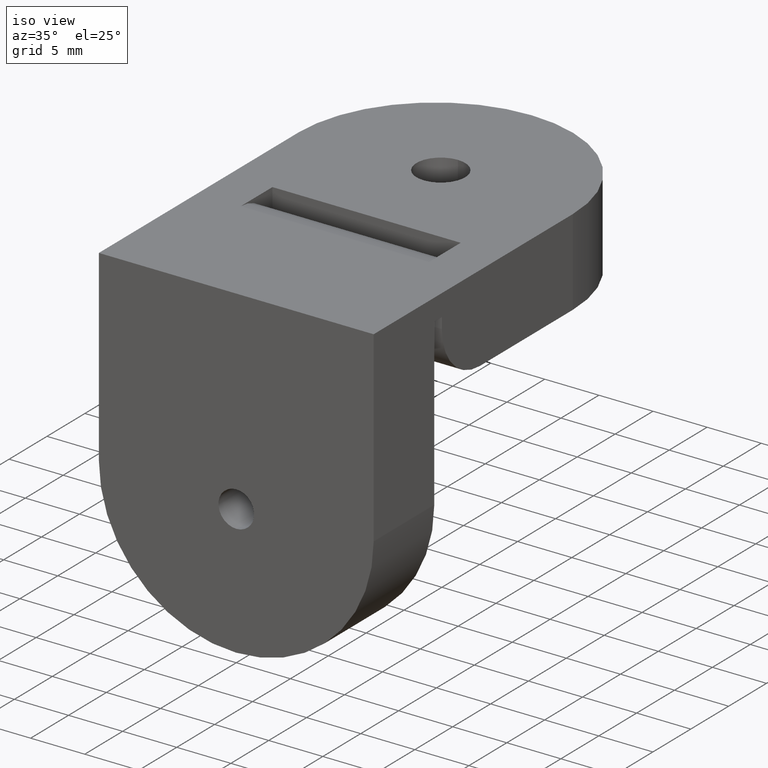
[diagram: clean part render]
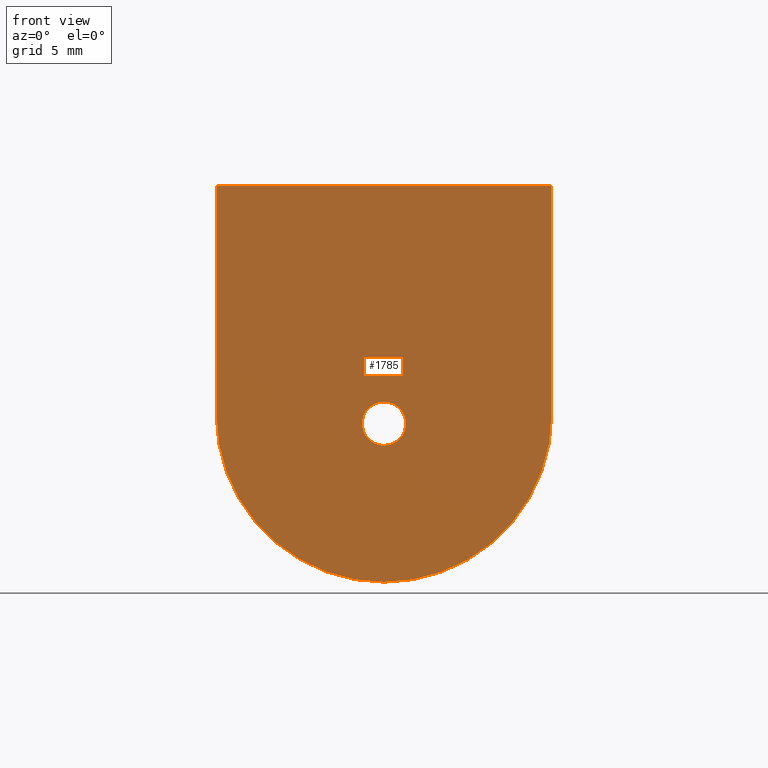
[diagram: tour spotlight — one face highlighted and labeled with its STEP entity id]
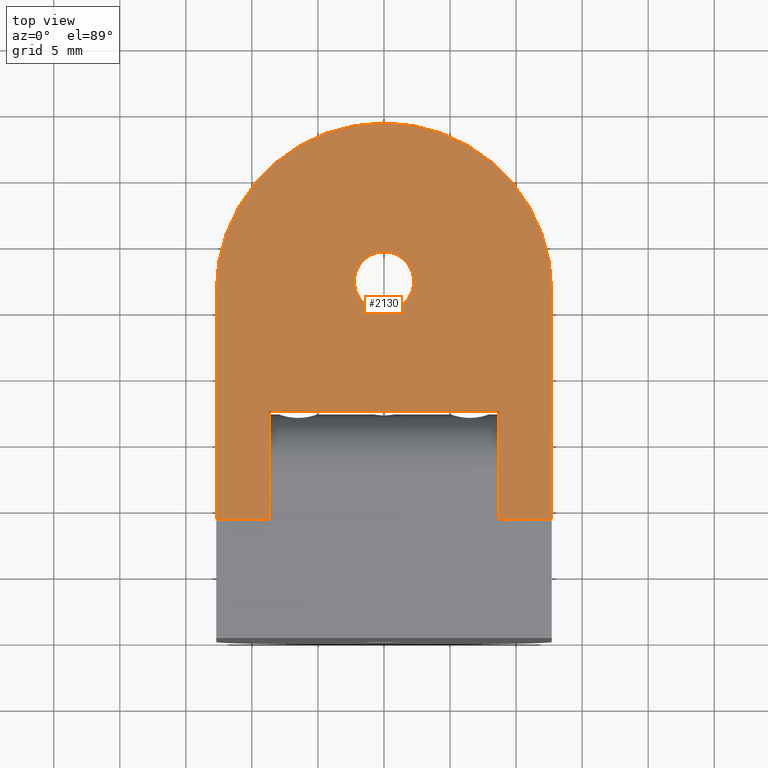
[diagram: tour spotlight — one face highlighted and labeled with its STEP entity id]
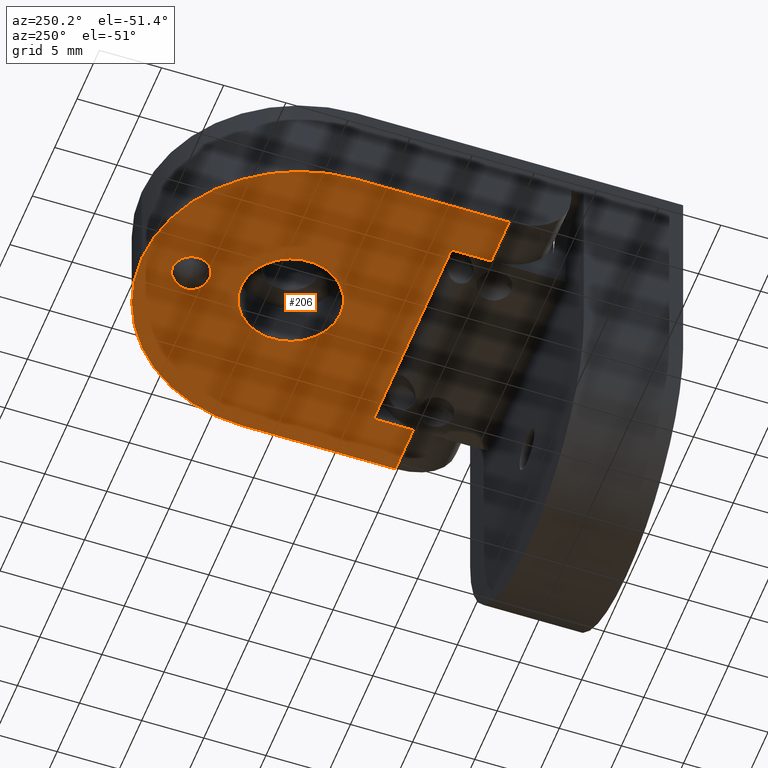
[diagram: tour spotlight — one face highlighted and labeled with its STEP entity id]
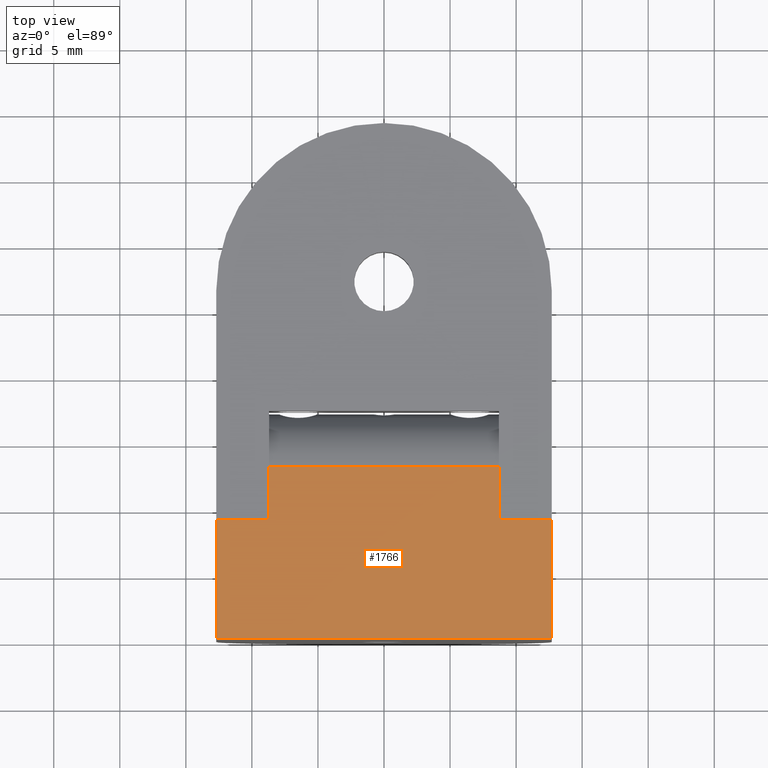
[diagram: tour spotlight — one face highlighted and labeled with its STEP entity id]
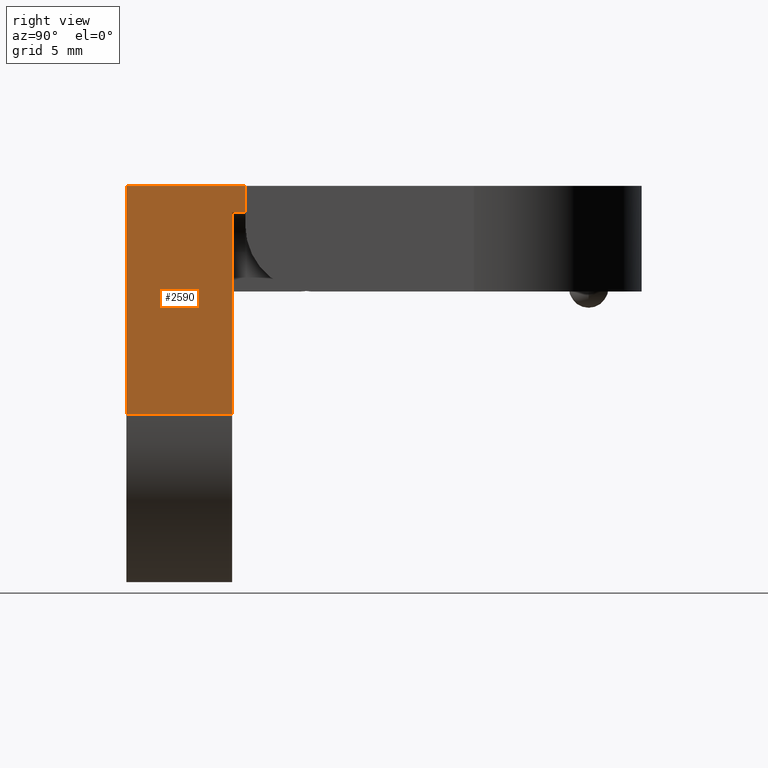
[diagram: tour spotlight — one face highlighted and labeled with its STEP entity id]
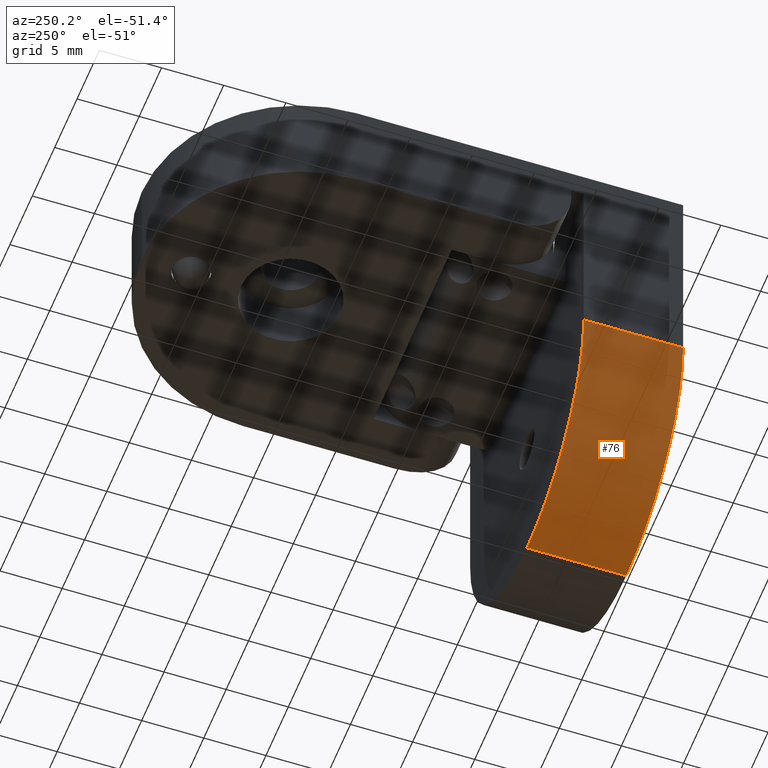
[diagram: tour spotlight — one face highlighted and labeled with its STEP entity id]
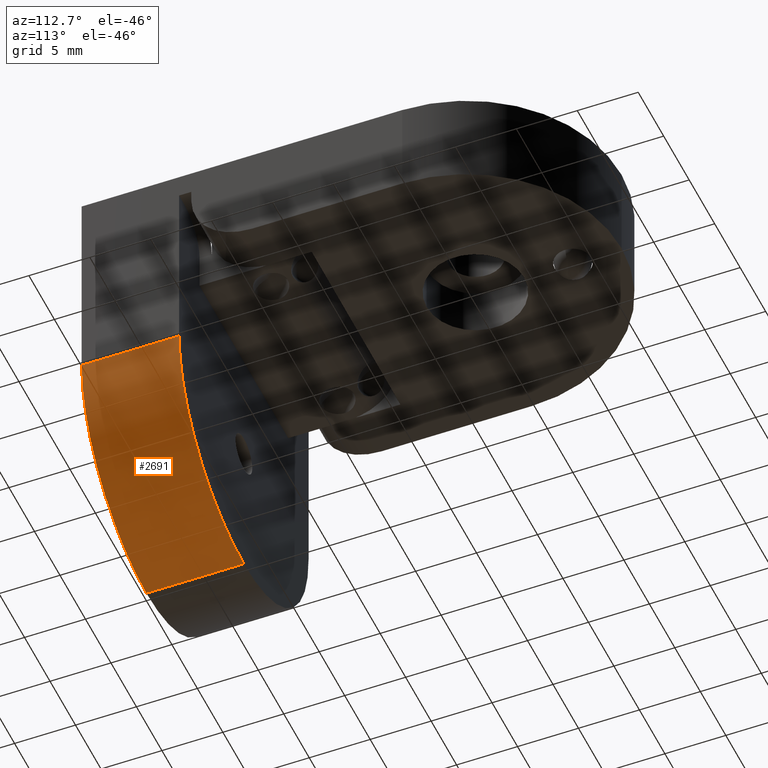
[diagram: tour spotlight — one face highlighted and labeled with its STEP entity id]
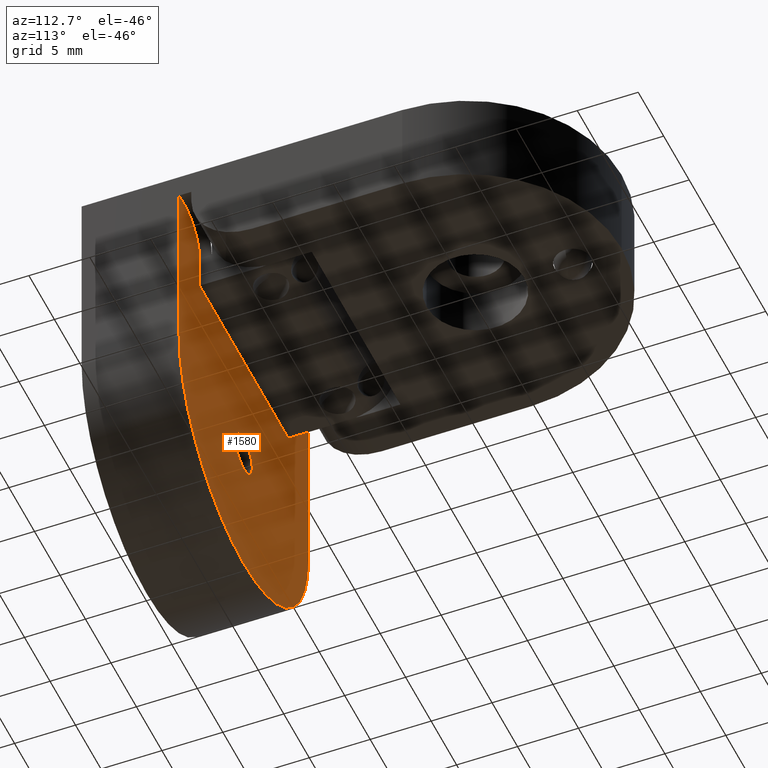
[diagram: tour spotlight — one face highlighted and labeled with its STEP entity id]
A machine part: a face-by-face anatomy tour. The part has 52 B-rep faces; the first image is the clean iso view, then the 8 largest visible faces are spotlighted one at a time (largest first), each with its STEP entity span.

Face 1 — front view, entity #1785. In plain terms, the highlighted planar face has unit normal (0, 1, -0).
Definition (entity closure, byte-faithful):
#17 = CARTESIAN_POINT ( 'NONE',  ( 2.020667218593131500E-016, 0.0000000000000000000, -19.65000000000000600 ) ) ;
#26 = CARTESIAN_POINT ( 'NONE',  ( -12.70000000000000500, 0.0000000000000000000, -1.340988245066351500E-015 ) ) ;
#235 = VERTEX_POINT ( 'NONE', #797 ) ;
#257 = DIRECTION ( 'NONE',  ( 0.0000000000000000000, 0.0000000000000000000, 1.000000000000000000 ) ) ;
#291 = FACE_BOUND ( 'NONE', #530, .T. ) ;
#305 = CIRCLE ( 'NONE', #1152, 12.69999999999999900 ) ;
#343 = VECTOR ( 'NONE', #1572, 1000.000000000000000 ) ;
#377 = CARTESIAN_POINT ( 'NONE',  ( 0.0000000000000000000, 0.0000000000000000000, -30.00000000000000400 ) ) ;
#392 = EDGE_CURVE ( 'NONE', #235, #1655, #305, .T. ) ;
#489 = CIRCLE ( 'NONE', #660, 1.649999999999998600 ) ;
#492 = EDGE_CURVE ( 'NONE', #1655, #976, #2020, .T. ) ;
#530 = EDGE_LOOP ( 'NONE', ( #2238, #2345 ) ) ;
#542 = EDGE_CURVE ( 'NONE', #2264, #1829, #2796, .T. ) ;
#590 = EDGE_LOOP ( 'NONE', ( #2422, #2455, #2482, #2712, #2745 ) ) ;
#660 = AXIS2_PLACEMENT_3D ( 'NONE', #2119, #2128, #2005 ) ;
#684 = VECTOR ( 'NONE', #691, 1000.000000000000000 ) ;
#691 = DIRECTION ( 'NONE',  ( -2.312964634635743000E-016, 0.0000000000000000000, 1.000000000000000000 ) ) ;
#743 = VERTEX_POINT ( 'NONE', #1146 ) ;
#797 = CARTESIAN_POINT ( 'NONE',  ( -12.70000000000000100, 0.0000000000000000000, -17.30000000000000800 ) ) ;
#959 = EDGE_CURVE ( 'NONE', #1829, #2264, #489, .T. ) ;
#976 = VERTEX_POINT ( 'NONE', #2139 ) ;
#981 = VERTEX_POINT ( 'NONE', #1955 ) ;
#988 = CARTESIAN_POINT ( 'NONE',  ( -12.70000000000000500, 0.0000000000000000000, -1.340988245066351500E-015 ) ) ;
#1030 = DIRECTION ( 'NONE',  ( -0.0000000000000000000, -1.000000000000000000, 0.0000000000000000000 ) ) ;
#1063 = EDGE_CURVE ( 'NONE', #743, #976, #1497, .T. ) ;
#1146 = CARTESIAN_POINT ( 'NONE',  ( 12.70000000000000500, 0.0000000000000000000, -1.340988245066351300E-015 ) ) ;
#1152 = AXIS2_PLACEMENT_3D ( 'NONE', #2289, #2510, #1674 ) ;
#1198 = DIRECTION ( 'NONE',  ( 1.000000000000000000, 0.0000000000000000000, 7.582401355855256700E-033 ) ) ;
#1207 = DIRECTION ( 'NONE',  ( 0.0000000000000000000, 0.0000000000000000000, 1.000000000000000000 ) ) ;
#1239 = CARTESIAN_POINT ( 'NONE',  ( 0.0000000000000000000, 0.0000000000000000000, -18.00000000000000700 ) ) ;
#1264 = LINE ( 'NONE', #1548, #684 ) ;
#1303 = VECTOR ( 'NONE', #1198, 1000.000000000000000 ) ;
#1323 = PLANE ( 'NONE',  #1612 ) ;
#1497 = LINE ( 'NONE', #1764, #343 ) ;
#1543 = DIRECTION ( 'NONE',  ( 0.0000000000000000000, 1.000000000000000000, -0.0000000000000000000 ) ) ;
#1548 = CARTESIAN_POINT ( 'NONE',  ( -12.69999999999999800, 0.0000000000000000000, -30.00000000000000000 ) ) ;
#1572 = DIRECTION ( 'NONE',  ( -1.156482317317871200E-016, -0.0000000000000000000, -1.000000000000000000 ) ) ;
#1612 = AXIS2_PLACEMENT_3D ( 'NONE', #26, #1543, #257 ) ;
#1655 = VERTEX_POINT ( 'NONE', #377 ) ;
#1674 = DIRECTION ( 'NONE',  ( 8.881784197001252300E-016, 0.0000000000000000000, 1.000000000000000000 ) ) ;
#1764 = CARTESIAN_POINT ( 'NONE',  ( 12.70000000000000100, 0.0000000000000000000, -30.00000000000000700 ) ) ;
#1785 = ADVANCED_FACE ( 'NONE', ( #291, #2524 ), #1323, .F. ) ;
#1829 = VERTEX_POINT ( 'NONE', #17 ) ;
#1869 = CARTESIAN_POINT ( 'NONE',  ( 3.469446951953614200E-015, 0.0000000000000000000, -17.30000000000000400 ) ) ;
#1878 = DIRECTION ( 'NONE',  ( -0.0000000000000000000, 1.000000000000000000, -0.0000000000000000000 ) ) ;
#1955 = CARTESIAN_POINT ( 'NONE',  ( -12.70000000000000500, 0.0000000000000000000, -1.340988245066351500E-015 ) ) ;
#2005 = DIRECTION ( 'NONE',  ( 0.0000000000000000000, 0.0000000000000000000, 1.000000000000000000 ) ) ;
#2020 = CIRCLE ( 'NONE', #2852, 12.69999999999999900 ) ;
#2083 = DIRECTION ( 'NONE',  ( 0.0000000000000000000, 0.0000000000000000000, 1.000000000000000000 ) ) ;
#2119 = CARTESIAN_POINT ( 'NONE',  ( 0.0000000000000000000, 0.0000000000000000000, -18.00000000000000700 ) ) ;
#2128 = DIRECTION ( 'NONE',  ( -0.0000000000000000000, 1.000000000000000000, -0.0000000000000000000 ) ) ;
#2139 = CARTESIAN_POINT ( 'NONE',  ( 12.70000000000000300, 0.0000000000000000000, -17.30000000000000400 ) ) ;
#2238 = ORIENTED_EDGE ( 'NONE', *, *, #542, .T. ) ;
#2263 = EDGE_CURVE ( 'NONE', #981, #743, #2462, .T. ) ;
#2264 = VERTEX_POINT ( 'NONE', #2755 ) ;
#2289 = CARTESIAN_POINT ( 'NONE',  ( -1.202741610010585500E-015, 0.0000000000000000000, -17.30000000000000400 ) ) ;
#2313 = AXIS2_PLACEMENT_3D ( 'NONE', #1239, #1878, #2083 ) ;
#2345 = ORIENTED_EDGE ( 'NONE', *, *, #959, .T. ) ;
#2422 = ORIENTED_EDGE ( 'NONE', *, *, #2473, .F. ) ;
#2455 = ORIENTED_EDGE ( 'NONE', *, *, #392, .T. ) ;
#2462 = LINE ( 'NONE', #988, #1303 ) ;
#2473 = EDGE_CURVE ( 'NONE', #235, #981, #1264, .T. ) ;
#2482 = ORIENTED_EDGE ( 'NONE', *, *, #492, .T. ) ;
#2510 = DIRECTION ( 'NONE',  ( -0.0000000000000000000, -1.000000000000000000, 0.0000000000000000000 ) ) ;
#2524 = FACE_OUTER_BOUND ( 'NONE', #590, .T. ) ;
#2712 = ORIENTED_EDGE ( 'NONE', *, *, #1063, .F. ) ;
#2745 = ORIENTED_EDGE ( 'NONE', *, *, #2263, .F. ) ;
#2755 = CARTESIAN_POINT ( 'NONE',  ( 0.0000000000000000000, 0.0000000000000000000, -16.35000000000000900 ) ) ;
#2796 = CIRCLE ( 'NONE', #2313, 1.649999999999998600 ) ;
#2852 = AXIS2_PLACEMENT_3D ( 'NONE', #1869, #1030, #1207 ) ;

Face 2 — top view, entity #2130. In plain terms, the highlighted planar face has unit normal (0, -0, 1).
Definition (entity closure, byte-faithful):
#1 = CARTESIAN_POINT ( 'NONE',  ( 1.426771256514218100E-014, 24.74999999999999600, 1.734723475976807100E-015 ) ) ;
#43 = CARTESIAN_POINT ( 'NONE',  ( 12.70000000000001900, 26.29999999999999000, 0.0000000000000000000 ) ) ;
#98 = DIRECTION ( 'NONE',  ( -4.051086181743855400E-016, -1.000000000000000000, 4.012346352874580400E-032 ) ) ;
#110 = AXIS2_PLACEMENT_3D ( 'NONE', #2067, #763, #2284 ) ;
#123 = ORIENTED_EDGE ( 'NONE', *, *, #2343, .T. ) ;
#156 = CARTESIAN_POINT ( 'NONE',  ( 1.473018841299535200E-014, 26.99999999999999600, 1.734723475976807100E-015 ) ) ;
#216 = CIRCLE ( 'NONE', #110, 2.249999999999998700 ) ;
#275 = CARTESIAN_POINT ( 'NONE',  ( -12.69999999999999200, 8.999999999999996400, 3.469446951953614200E-015 ) ) ;
#313 = CARTESIAN_POINT ( 'NONE',  ( 12.70000000000001900, 38.99999999999999300, 0.0000000000000000000 ) ) ;
#339 = EDGE_CURVE ( 'NONE', #2782, #1616, #1968, .T. ) ;
#349 = DIRECTION ( 'NONE',  ( -1.734720147809983000E-016, 0.0000000000000000000, -1.000000000000000000 ) ) ;
#351 = AXIS2_PLACEMENT_3D ( 'NONE', #729, #2252, #956 ) ;
#384 = LINE ( 'NONE', #2081, #1459 ) ;
#386 = AXIS2_PLACEMENT_3D ( 'NONE', #156, #349, #762 ) ;
#394 = CARTESIAN_POINT ( 'NONE',  ( -12.69999999999999200, 8.999999999999996400, 3.469446951953614200E-015 ) ) ;
#397 = EDGE_CURVE ( 'NONE', #2211, #2381, #1328, .T. ) ;
#440 = VERTEX_POINT ( 'NONE', #1850 ) ;
#513 = EDGE_CURVE ( 'NONE', #2072, #770, #1743, .T. ) ;
#524 = EDGE_CURVE ( 'NONE', #687, #2642, #1667, .T. ) ;
#531 = CARTESIAN_POINT ( 'NONE',  ( 8.700000000000015300, 17.19999999999999200, 0.0000000000000000000 ) ) ;
#558 = EDGE_LOOP ( 'NONE', ( #2641, #2710 ) ) ;
#617 = LINE ( 'NONE', #861, #1706 ) ;
#628 = EDGE_CURVE ( 'NONE', #1332, #440, #384, .T. ) ;
#687 = VERTEX_POINT ( 'NONE', #1936 ) ;
#690 = VECTOR ( 'NONE', #2341, 1000.000000000000000 ) ;
#729 = CARTESIAN_POINT ( 'NONE',  ( -12.69999999999999200, 8.999999999999996400, 3.469446951953614200E-015 ) ) ;
#734 = EDGE_CURVE ( 'NONE', #2381, #440, #1837, .T. ) ;
#762 = DIRECTION ( 'NONE',  ( 1.738121547108111700E-016, 1.000000000000000000, 0.0000000000000000000 ) ) ;
#763 = DIRECTION ( 'NONE',  ( -1.734720147809983000E-016, 0.0000000000000000000, -1.000000000000000000 ) ) ;
#770 = VERTEX_POINT ( 'NONE', #912 ) ;
#789 = EDGE_CURVE ( 'NONE', #2642, #1332, #617, .T. ) ;
#840 = DIRECTION ( 'NONE',  ( -1.000000000000000000, 7.411540321789126700E-017, 1.734720147809983500E-016 ) ) ;
#861 = CARTESIAN_POINT ( 'NONE',  ( -8.699999999999983300, 17.19999999999999200, 3.469446951953614200E-015 ) ) ;
#912 = CARTESIAN_POINT ( 'NONE',  ( 1.681593426952508600E-014, 38.99999999999999300, 1.734723475976807100E-015 ) ) ;
#946 = ORIENTED_EDGE ( 'NONE', *, *, #1897, .T. ) ;
#956 = DIRECTION ( 'NONE',  ( -1.738121547108112500E-016, -1.000000000000000000, 0.0000000000000000000 ) ) ;
#1089 = VECTOR ( 'NONE', #1854, 1000.000000000000000 ) ;
#1094 = CIRCLE ( 'NONE', #2786, 12.69999999999999900 ) ;
#1100 = VECTOR ( 'NONE', #1227, 1000.000000000000000 ) ;
#1103 = VECTOR ( 'NONE', #1360, 1000.000000000000000 ) ;
#1166 = LINE ( 'NONE', #275, #1103 ) ;
#1191 = FACE_OUTER_BOUND ( 'NONE', #2668, .T. ) ;
#1227 = DIRECTION ( 'NONE',  ( 1.738121547108112500E-016, 1.000000000000000000, 0.0000000000000000000 ) ) ;
#1246 = DIRECTION ( 'NONE',  ( 1.734720147809983000E-016, 0.0000000000000000000, 1.000000000000000000 ) ) ;
#1247 = DIRECTION ( 'NONE',  ( 1.734720147809983000E-016, 0.0000000000000000000, 1.000000000000000000 ) ) ;
#1262 = CARTESIAN_POINT ( 'NONE',  ( 1.512126576109467900E-014, 29.24999999999999600, 1.734723475976807100E-015 ) ) ;
#1328 = LINE ( 'NONE', #2281, #2419 ) ;
#1332 = VERTEX_POINT ( 'NONE', #1704 ) ;
#1360 = DIRECTION ( 'NONE',  ( 1.000000000000000000, -1.738121547108112200E-016, -1.734720147809983500E-016 ) ) ;
#1383 = CARTESIAN_POINT ( 'NONE',  ( -12.69999999999998500, 26.30000000000000400, 3.469446951953614200E-015 ) ) ;
#1438 = ORIENTED_EDGE ( 'NONE', *, *, #524, .F. ) ;
#1443 = CARTESIAN_POINT ( 'NONE',  ( 8.700000000000013500, 8.999999999999994700, 0.0000000000000000000 ) ) ;
#1459 = VECTOR ( 'NONE', #2850, 1000.000000000000000 ) ;
#1616 = VERTEX_POINT ( 'NONE', #1 ) ;
#1650 = ORIENTED_EDGE ( 'NONE', *, *, #789, .F. ) ;
#1667 = LINE ( 'NONE', #1443, #1100 ) ;
#1704 = CARTESIAN_POINT ( 'NONE',  ( -8.699999999999983300, 17.19999999999999200, 3.469446951953614200E-015 ) ) ;
#1706 = VECTOR ( 'NONE', #840, 1000.000000000000000 ) ;
#1729 = ORIENTED_EDGE ( 'NONE', *, *, #734, .T. ) ;
#1734 = VERTEX_POINT ( 'NONE', #2855 ) ;
#1743 = CIRCLE ( 'NONE', #2025, 12.69999999999999900 ) ;
#1828 = ORIENTED_EDGE ( 'NONE', *, *, #513, .T. ) ;
#1835 = FACE_BOUND ( 'NONE', #558, .T. ) ;
#1837 = LINE ( 'NONE', #2104, #690 ) ;
#1850 = CARTESIAN_POINT ( 'NONE',  ( -8.699999999999985100, 8.999999999999996400, 3.469446951953614200E-015 ) ) ;
#1854 = DIRECTION ( 'NONE',  ( 5.816392297902412600E-017, 1.000000000000000000, 2.006173176437289900E-032 ) ) ;
#1897 = EDGE_CURVE ( 'NONE', #687, #1734, #1166, .T. ) ;
#1936 = CARTESIAN_POINT ( 'NONE',  ( 8.700000000000013500, 8.999999999999994700, 0.0000000000000000000 ) ) ;
#1968 = CIRCLE ( 'NONE', #386, 2.249999999999998700 ) ;
#2025 = AXIS2_PLACEMENT_3D ( 'NONE', #2310, #1247, #2335 ) ;
#2067 = CARTESIAN_POINT ( 'NONE',  ( 1.473018841299535200E-014, 26.99999999999999600, 1.734723475976807100E-015 ) ) ;
#2072 = VERTEX_POINT ( 'NONE', #43 ) ;
#2081 = CARTESIAN_POINT ( 'NONE',  ( -8.699999999999985100, 8.999999999999996400, 3.469446951953614200E-015 ) ) ;
#2104 = CARTESIAN_POINT ( 'NONE',  ( -12.69999999999999200, 8.999999999999996400, 3.469446951953614200E-015 ) ) ;
#2130 = ADVANCED_FACE ( 'NONE', ( #1835, #1191 ), #2711, .T. ) ;
#2211 = VERTEX_POINT ( 'NONE', #1383 ) ;
#2220 = EDGE_CURVE ( 'NONE', #1616, #2782, #216, .T. ) ;
#2242 = LINE ( 'NONE', #313, #1089 ) ;
#2252 = DIRECTION ( 'NONE',  ( 1.734720147809983000E-016, -3.015154467111101400E-032, 1.000000000000000000 ) ) ;
#2281 = CARTESIAN_POINT ( 'NONE',  ( -12.69999999999998000, 38.99999999999999300, 3.469446951953614200E-015 ) ) ;
#2284 = DIRECTION ( 'NONE',  ( 1.738121547108111700E-016, 1.000000000000000000, 0.0000000000000000000 ) ) ;
#2310 = CARTESIAN_POINT ( 'NONE',  ( 1.807796685665139600E-014, 26.29999999999999700, 1.734723475976807100E-015 ) ) ;
#2335 = DIRECTION ( 'NONE',  ( -1.738121547108112500E-016, -1.000000000000000000, 0.0000000000000000000 ) ) ;
#2341 = DIRECTION ( 'NONE',  ( 1.000000000000000000, -1.738121547108112200E-016, -1.734720147809983500E-016 ) ) ;
#2343 = EDGE_CURVE ( 'NONE', #770, #2211, #1094, .T. ) ;
#2381 = VERTEX_POINT ( 'NONE', #394 ) ;
#2391 = ORIENTED_EDGE ( 'NONE', *, *, #2679, .T. ) ;
#2419 = VECTOR ( 'NONE', #98, 1000.000000000000000 ) ;
#2514 = ORIENTED_EDGE ( 'NONE', *, *, #397, .T. ) ;
#2556 = CARTESIAN_POINT ( 'NONE',  ( 1.340577829468719800E-014, 26.29999999999999700, 1.734723475976807100E-015 ) ) ;
#2641 = ORIENTED_EDGE ( 'NONE', *, *, #339, .T. ) ;
#2642 = VERTEX_POINT ( 'NONE', #531 ) ;
#2644 = ORIENTED_EDGE ( 'NONE', *, *, #628, .F. ) ;
#2668 = EDGE_LOOP ( 'NONE', ( #1828, #123, #2514, #1729, #2644, #1650, #1438, #946, #2391 ) ) ;
#2679 = EDGE_CURVE ( 'NONE', #1734, #2072, #2242, .T. ) ;
#2710 = ORIENTED_EDGE ( 'NONE', *, *, #2220, .T. ) ;
#2711 = PLANE ( 'NONE',  #351 ) ;
#2782 = VERTEX_POINT ( 'NONE', #1262 ) ;
#2786 = AXIS2_PLACEMENT_3D ( 'NONE', #2556, #1246, #2804 ) ;
#2804 = DIRECTION ( 'NONE',  ( -1.738121547108112500E-016, -1.000000000000000000, 0.0000000000000000000 ) ) ;
#2850 = DIRECTION ( 'NONE',  ( -1.738121547108112500E-016, -1.000000000000000000, 0.0000000000000000000 ) ) ;
#2855 = CARTESIAN_POINT ( 'NONE',  ( 12.70000000000001700, 8.999999999999992900, 0.0000000000000000000 ) ) ;

Face 3 — auxiliary view, entity #206. In plain terms, the highlighted planar face has unit normal (0, -0, 1).
Definition (entity closure, byte-faithful):
#63 = EDGE_LOOP ( 'NONE', ( #1521, #1800, #2144, #1559, #1584, #1697, #1767, #2746, #1862 ) ) ;
#126 = FACE_OUTER_BOUND ( 'NONE', #63, .T. ) ;
#142 = DIRECTION ( 'NONE',  ( -1.734720147809983000E-016, 0.0000000000000000000, -1.000000000000000000 ) ) ;
#152 = CARTESIAN_POINT ( 'NONE',  ( -8.699999999999985100, 13.99999999999999500, -7.999999999999996400 ) ) ;
#162 = DIRECTION ( 'NONE',  ( 5.816392297902412600E-017, 1.000000000000000000, 2.006173176437289900E-032 ) ) ;
#167 = AXIS2_PLACEMENT_3D ( 'NONE', #1984, #142, #1959 ) ;
#195 = DIRECTION ( 'NONE',  ( -4.051086181743855400E-016, -1.000000000000000000, 4.012346352874580400E-032 ) ) ;
#206 = ADVANCED_FACE ( 'NONE', ( #718, #1214, #126 ), #518, .F. ) ;
#219 = EDGE_CURVE ( 'NONE', #2545, #977, #247, .T. ) ;
#247 = CIRCLE ( 'NONE', #2705, 12.69999999999999900 ) ;
#260 = VECTOR ( 'NONE', #195, 1000.000000000000000 ) ;
#412 = CIRCLE ( 'NONE', #2603, 12.69999999999999900 ) ;
#456 = EDGE_CURVE ( 'NONE', #2784, #1560, #1501, .T. ) ;
#518 = PLANE ( 'NONE',  #1039 ) ;
#545 = CARTESIAN_POINT ( 'NONE',  ( 1.473290953243385300E-014, 34.99999999999999300, -7.999999999999998200 ) ) ;
#557 = VERTEX_POINT ( 'NONE', #2450 ) ;
#585 = EDGE_CURVE ( 'NONE', #2129, #2249, #1596, .T. ) ;
#588 = CARTESIAN_POINT ( 'NONE',  ( -12.69999999999999200, 13.99999999999999600, -7.999999999999996400 ) ) ;
#635 = DIRECTION ( 'NONE',  ( -1.734720147809983000E-016, -0.0000000000000000000, -1.000000000000000000 ) ) ;
#656 = DIRECTION ( 'NONE',  ( -1.000000000000000000, 1.738121547108112200E-016, 1.734720147809983500E-016 ) ) ;
#669 = EDGE_CURVE ( 'NONE', #1156, #2716, #2045, .T. ) ;
#692 = EDGE_CURVE ( 'NONE', #2716, #1014, #1910, .T. ) ;
#693 = CARTESIAN_POINT ( 'NONE',  ( 1.201800217643921200E-014, 26.29999999999999700, -7.999999999999998200 ) ) ;
#708 = EDGE_CURVE ( 'NONE', #2545, #1014, #1393, .T. ) ;
#709 = CARTESIAN_POINT ( 'NONE',  ( 1.334241229474736400E-014, 26.99999999999999600, -7.999999999999998200 ) ) ;
#718 = FACE_BOUND ( 'NONE', #2589, .T. ) ;
#826 = VECTOR ( 'NONE', #1755, 1000.000000000000000 ) ;
#849 = AXIS2_PLACEMENT_3D ( 'NONE', #709, #2228, #936 ) ;
#875 = EDGE_CURVE ( 'NONE', #2336, #2129, #2221, .T. ) ;
#930 = CARTESIAN_POINT ( 'NONE',  ( -12.69999999999999200, 13.99999999999999600, -7.999999999999996400 ) ) ;
#936 = DIRECTION ( 'NONE',  ( 1.738121547108115000E-016, 1.000000000000000000, 0.0000000000000000000 ) ) ;
#966 = AXIS2_PLACEMENT_3D ( 'NONE', #545, #2777, #1425 ) ;
#969 = DIRECTION ( 'NONE',  ( 1.734720147809983000E-016, -3.015154467111101400E-032, 1.000000000000000000 ) ) ;
#977 = VERTEX_POINT ( 'NONE', #1997 ) ;
#997 = CARTESIAN_POINT ( 'NONE',  ( 1.465588832023973700E-014, 33.49999999999998600, -7.999999999999998200 ) ) ;
#1014 = VERTEX_POINT ( 'NONE', #1780 ) ;
#1039 = AXIS2_PLACEMENT_3D ( 'NONE', #1174, #969, #1119 ) ;
#1119 = DIRECTION ( 'NONE',  ( -1.738121547108112500E-016, -1.000000000000000000, 0.0000000000000000000 ) ) ;
#1148 = EDGE_CURVE ( 'NONE', #1253, #2042, #1226, .T. ) ;
#1156 = VERTEX_POINT ( 'NONE', #2111 ) ;
#1157 = CARTESIAN_POINT ( 'NONE',  ( 1.669019073840341200E-014, 26.29999999999999700, -7.999999999999998200 ) ) ;
#1174 = CARTESIAN_POINT ( 'NONE',  ( -12.69999999999999400, 8.999999999999996400, -7.999999999999996400 ) ) ;
#1199 = EDGE_CURVE ( 'NONE', #2249, #1156, #1567, .T. ) ;
#1214 = FACE_BOUND ( 'NONE', #2063, .T. ) ;
#1226 = CIRCLE ( 'NONE', #167, 4.000000000000000000 ) ;
#1253 = VERTEX_POINT ( 'NONE', #1915 ) ;
#1256 = DIRECTION ( 'NONE',  ( -1.738121547108112500E-016, -1.000000000000000000, 0.0000000000000000000 ) ) ;
#1282 = CARTESIAN_POINT ( 'NONE',  ( -12.69999999999998200, 38.99999999999999300, -7.999999999999996400 ) ) ;
#1310 = CARTESIAN_POINT ( 'NONE',  ( -8.699999999999986900, 8.999999999999996400, -7.999999999999996400 ) ) ;
#1335 = VECTOR ( 'NONE', #162, 1000.000000000000000 ) ;
#1338 = VECTOR ( 'NONE', #2206, 1000.000000000000000 ) ;
#1362 = ORIENTED_EDGE ( 'NONE', *, *, #1925, .F. ) ;
#1375 = DIRECTION ( 'NONE',  ( -1.738121547108112500E-016, -1.000000000000000000, 0.0000000000000000000 ) ) ;
#1393 = LINE ( 'NONE', #1282, #260 ) ;
#1405 = CARTESIAN_POINT ( 'NONE',  ( 8.700000000000013500, 17.19999999999999200, -8.000000000000000000 ) ) ;
#1411 = AXIS2_PLACEMENT_3D ( 'NONE', #1943, #635, #2162 ) ;
#1414 = ORIENTED_EDGE ( 'NONE', *, *, #1148, .F. ) ;
#1425 = DIRECTION ( 'NONE',  ( 1.738121547108116200E-016, 1.000000000000000000, 0.0000000000000000000 ) ) ;
#1473 = DIRECTION ( 'NONE',  ( -1.734720147809983000E-016, -0.0000000000000000000, -1.000000000000000000 ) ) ;
#1501 = CIRCLE ( 'NONE', #966, 1.500000000000001300 ) ;
#1521 = ORIENTED_EDGE ( 'NONE', *, *, #708, .F. ) ;
#1556 = CARTESIAN_POINT ( 'NONE',  ( -12.69999999999998700, 26.30000000000000400, -7.999999999999996400 ) ) ;
#1559 = ORIENTED_EDGE ( 'NONE', *, *, #2366, .F. ) ;
#1560 = VERTEX_POINT ( 'NONE', #997 ) ;
#1561 = CARTESIAN_POINT ( 'NONE',  ( 1.348396642512505600E-014, 22.99999999999999600, -7.999999999999998200 ) ) ;
#1567 = LINE ( 'NONE', #2546, #1739 ) ;
#1584 = ORIENTED_EDGE ( 'NONE', *, *, #875, .T. ) ;
#1596 = LINE ( 'NONE', #2328, #2722 ) ;
#1625 = VECTOR ( 'NONE', #656, 1000.000000000000000 ) ;
#1670 = CIRCLE ( 'NONE', #1411, 1.500000000000001300 ) ;
#1697 = ORIENTED_EDGE ( 'NONE', *, *, #585, .T. ) ;
#1739 = VECTOR ( 'NONE', #2193, 1000.000000000000000 ) ;
#1755 = DIRECTION ( 'NONE',  ( -1.738121547108112500E-016, -1.000000000000000000, 0.0000000000000000000 ) ) ;
#1767 = ORIENTED_EDGE ( 'NONE', *, *, #1199, .T. ) ;
#1780 = CARTESIAN_POINT ( 'NONE',  ( -12.69999999999999000, 13.99999999999999500, -7.999999999999996400 ) ) ;
#1800 = ORIENTED_EDGE ( 'NONE', *, *, #219, .T. ) ;
#1862 = ORIENTED_EDGE ( 'NONE', *, *, #692, .T. ) ;
#1908 = LINE ( 'NONE', #2333, #1335 ) ;
#1910 = LINE ( 'NONE', #930, #1338 ) ;
#1915 = CARTESIAN_POINT ( 'NONE',  ( 1.403766091359061000E-014, 30.99999999999999600, -7.999999999999998200 ) ) ;
#1925 = EDGE_CURVE ( 'NONE', #1560, #2784, #1670, .T. ) ;
#1943 = CARTESIAN_POINT ( 'NONE',  ( 1.473290953243385300E-014, 34.99999999999999300, -7.999999999999998200 ) ) ;
#1959 = DIRECTION ( 'NONE',  ( 1.738121547108115000E-016, 1.000000000000000000, 0.0000000000000000000 ) ) ;
#1984 = CARTESIAN_POINT ( 'NONE',  ( 1.334241229474736400E-014, 26.99999999999999600, -7.999999999999998200 ) ) ;
#1997 = CARTESIAN_POINT ( 'NONE',  ( 1.542815815127709900E-014, 38.99999999999999300, -7.999999999999998200 ) ) ;
#2027 = CARTESIAN_POINT ( 'NONE',  ( 8.700000000000013500, 13.99999999999999100, -8.000000000000000000 ) ) ;
#2042 = VERTEX_POINT ( 'NONE', #1561 ) ;
#2045 = LINE ( 'NONE', #1310, #826 ) ;
#2063 = EDGE_LOOP ( 'NONE', ( #1414, #2308 ) ) ;
#2077 = EDGE_CURVE ( 'NONE', #2042, #1253, #2321, .T. ) ;
#2111 = CARTESIAN_POINT ( 'NONE',  ( -8.699999999999985100, 17.19999999999999200, -7.999999999999996400 ) ) ;
#2129 = VERTEX_POINT ( 'NONE', #2027 ) ;
#2144 = ORIENTED_EDGE ( 'NONE', *, *, #2509, .T. ) ;
#2148 = ORIENTED_EDGE ( 'NONE', *, *, #456, .F. ) ;
#2162 = DIRECTION ( 'NONE',  ( 1.738121547108116200E-016, 1.000000000000000000, 0.0000000000000000000 ) ) ;
#2193 = DIRECTION ( 'NONE',  ( -1.000000000000000000, 7.411540321789126700E-017, 1.734720147809983500E-016 ) ) ;
#2206 = DIRECTION ( 'NONE',  ( -1.000000000000000000, 1.738121547108112200E-016, 1.734720147809983500E-016 ) ) ;
#2221 = LINE ( 'NONE', #588, #1625 ) ;
#2228 = DIRECTION ( 'NONE',  ( -1.734720147809983000E-016, 0.0000000000000000000, -1.000000000000000000 ) ) ;
#2249 = VERTEX_POINT ( 'NONE', #1405 ) ;
#2308 = ORIENTED_EDGE ( 'NONE', *, *, #2077, .F. ) ;
#2321 = CIRCLE ( 'NONE', #849, 4.000000000000000000 ) ;
#2324 = CARTESIAN_POINT ( 'NONE',  ( 12.70000000000001700, 13.99999999999999100, -8.000000000000000000 ) ) ;
#2328 = CARTESIAN_POINT ( 'NONE',  ( 8.700000000000011700, 8.999999999999994700, -8.000000000000000000 ) ) ;
#2333 = CARTESIAN_POINT ( 'NONE',  ( 12.70000000000001700, 38.99999999999999300, -8.000000000000000000 ) ) ;
#2336 = VERTEX_POINT ( 'NONE', #2324 ) ;
#2366 = EDGE_CURVE ( 'NONE', #2336, #557, #1908, .T. ) ;
#2450 = CARTESIAN_POINT ( 'NONE',  ( 12.70000000000001700, 26.29999999999999000, -8.000000000000000000 ) ) ;
#2494 = DIRECTION ( 'NONE',  ( 1.738121547108112500E-016, 1.000000000000000000, 0.0000000000000000000 ) ) ;
#2509 = EDGE_CURVE ( 'NONE', #977, #557, #412, .T. ) ;
#2545 = VERTEX_POINT ( 'NONE', #1556 ) ;
#2546 = CARTESIAN_POINT ( 'NONE',  ( -8.699999999999985100, 17.19999999999999200, -7.999999999999996400 ) ) ;
#2574 = CARTESIAN_POINT ( 'NONE',  ( 1.499362776450007100E-014, 36.49999999999999300, -7.999999999999998200 ) ) ;
#2589 = EDGE_LOOP ( 'NONE', ( #2148, #1362 ) ) ;
#2603 = AXIS2_PLACEMENT_3D ( 'NONE', #1157, #2704, #1375 ) ;
#2704 = DIRECTION ( 'NONE',  ( -1.734720147809983000E-016, -0.0000000000000000000, -1.000000000000000000 ) ) ;
#2705 = AXIS2_PLACEMENT_3D ( 'NONE', #693, #1473, #1256 ) ;
#2716 = VERTEX_POINT ( 'NONE', #152 ) ;
#2722 = VECTOR ( 'NONE', #2494, 1000.000000000000000 ) ;
#2746 = ORIENTED_EDGE ( 'NONE', *, *, #669, .T. ) ;
#2777 = DIRECTION ( 'NONE',  ( -1.734720147809983000E-016, -0.0000000000000000000, -1.000000000000000000 ) ) ;
#2784 = VERTEX_POINT ( 'NONE', #2574 ) ;

Face 4 — top view, entity #1766. In plain terms, the highlighted planar face has unit normal (0, 0, -1).
Definition (entity closure, byte-faithful):
#46 = EDGE_CURVE ( 'NONE', #1211, #2857, #158, .T. ) ;
#52 = VECTOR ( 'NONE', #1652, 1000.000000000000000 ) ;
#158 = LINE ( 'NONE', #362, #52 ) ;
#261 = EDGE_CURVE ( 'NONE', #1084, #1487, #1583, .T. ) ;
#297 = DIRECTION ( 'NONE',  ( 1.000000000000000000, 0.0000000000000000000, 8.113285044351170500E-017 ) ) ;
#338 = EDGE_LOOP ( 'NONE', ( #716, #2869, #2486, #2309, #2515, #2349, #482, #1617 ) ) ;
#357 = DIRECTION ( 'NONE',  ( -0.0000000000000000000, -1.000000000000000000, -0.0000000000000000000 ) ) ;
#362 = CARTESIAN_POINT ( 'NONE',  ( 8.699999999999997500, 17.00000000000000000, -1.340988245066351500E-015 ) ) ;
#389 = CARTESIAN_POINT ( 'NONE',  ( -12.70000000000000500, 13.00000000000000200, -1.340988245066351500E-015 ) ) ;
#463 = DIRECTION ( 'NONE',  ( 1.000000000000000000, -0.0000000000000000000, -3.260622102729823700E-016 ) ) ;
#482 = ORIENTED_EDGE ( 'NONE', *, *, #554, .F. ) ;
#554 = EDGE_CURVE ( 'NONE', #1356, #743, #574, .T. ) ;
#574 = LINE ( 'NONE', #1230, #2189 ) ;
#606 = DIRECTION ( 'NONE',  ( -0.0000000000000000000, -1.000000000000000000, -0.0000000000000000000 ) ) ;
#665 = CARTESIAN_POINT ( 'NONE',  ( 8.699999999999997500, 13.00000000000000200, -1.340988245066351500E-015 ) ) ;
#716 = ORIENTED_EDGE ( 'NONE', *, *, #46, .F. ) ;
#743 = VERTEX_POINT ( 'NONE', #1146 ) ;
#885 = DIRECTION ( 'NONE',  ( 7.582401355855256700E-033, 0.0000000000000000000, -1.000000000000000000 ) ) ;
#895 = CARTESIAN_POINT ( 'NONE',  ( -8.699999999999997500, 9.000000000000001800, -1.340988245066351500E-015 ) ) ;
#908 = CARTESIAN_POINT ( 'NONE',  ( -8.699999999999997500, 9.000000000000001800, -1.340988245066351500E-015 ) ) ;
#981 = VERTEX_POINT ( 'NONE', #1955 ) ;
#983 = LINE ( 'NONE', #1581, #2069 ) ;
#988 = CARTESIAN_POINT ( 'NONE',  ( -12.70000000000000500, 0.0000000000000000000, -1.340988245066351500E-015 ) ) ;
#1084 = VERTEX_POINT ( 'NONE', #1346 ) ;
#1130 = VECTOR ( 'NONE', #606, 1000.000000000000000 ) ;
#1146 = CARTESIAN_POINT ( 'NONE',  ( 12.70000000000000500, 0.0000000000000000000, -1.340988245066351300E-015 ) ) ;
#1198 = DIRECTION ( 'NONE',  ( 1.000000000000000000, 0.0000000000000000000, 7.582401355855256700E-033 ) ) ;
#1211 = VERTEX_POINT ( 'NONE', #665 ) ;
#1230 = CARTESIAN_POINT ( 'NONE',  ( 12.70000000000000500, 8.000000000000000000, -1.340988245066351300E-015 ) ) ;
#1303 = VECTOR ( 'NONE', #1198, 1000.000000000000000 ) ;
#1314 = PLANE ( 'NONE',  #1811 ) ;
#1346 = CARTESIAN_POINT ( 'NONE',  ( -8.699999999999997500, 13.00000000000000200, -1.340988245066351500E-015 ) ) ;
#1356 = VERTEX_POINT ( 'NONE', #1751 ) ;
#1487 = VERTEX_POINT ( 'NONE', #895 ) ;
#1563 = CARTESIAN_POINT ( 'NONE',  ( -12.69999999999999900, 9.000000000000001800, -3.673940397442155600E-017 ) ) ;
#1581 = CARTESIAN_POINT ( 'NONE',  ( 8.700000000000001100, 9.000000000000001800, -3.471873675582745600E-015 ) ) ;
#1583 = LINE ( 'NONE', #2831, #2095 ) ;
#1617 = ORIENTED_EDGE ( 'NONE', *, *, #2573, .F. ) ;
#1634 = EDGE_CURVE ( 'NONE', #1211, #1084, #2615, .T. ) ;
#1652 = DIRECTION ( 'NONE',  ( -0.0000000000000000000, -1.000000000000000000, -0.0000000000000000000 ) ) ;
#1703 = LINE ( 'NONE', #1914, #1130 ) ;
#1751 = CARTESIAN_POINT ( 'NONE',  ( 12.70000000000000300, 9.000000000000001800, -3.147342273808698900E-015 ) ) ;
#1766 = ADVANCED_FACE ( 'NONE', ( #2842 ), #1314, .F. ) ;
#1806 = LINE ( 'NONE', #908, #2717 ) ;
#1811 = AXIS2_PLACEMENT_3D ( 'NONE', #2188, #885, #2407 ) ;
#1864 = VERTEX_POINT ( 'NONE', #1563 ) ;
#1906 = DIRECTION ( 'NONE',  ( -1.000000000000000000, -0.0000000000000000000, -7.582401355855256700E-033 ) ) ;
#1914 = CARTESIAN_POINT ( 'NONE',  ( -12.70000000000000500, 8.000000000000000000, -1.340988245066351500E-015 ) ) ;
#1955 = CARTESIAN_POINT ( 'NONE',  ( -12.70000000000000500, 0.0000000000000000000, -1.340988245066351500E-015 ) ) ;
#2021 = VECTOR ( 'NONE', #1906, 1000.000000000000000 ) ;
#2069 = VECTOR ( 'NONE', #297, 1000.000000000000000 ) ;
#2095 = VECTOR ( 'NONE', #2355, 1000.000000000000000 ) ;
#2188 = CARTESIAN_POINT ( 'NONE',  ( -12.70000000000000500, 8.000000000000000000, -1.340988245066351500E-015 ) ) ;
#2189 = VECTOR ( 'NONE', #357, 1000.000000000000000 ) ;
#2263 = EDGE_CURVE ( 'NONE', #981, #743, #2462, .T. ) ;
#2309 = ORIENTED_EDGE ( 'NONE', *, *, #2428, .F. ) ;
#2349 = ORIENTED_EDGE ( 'NONE', *, *, #2263, .T. ) ;
#2355 = DIRECTION ( 'NONE',  ( -0.0000000000000000000, -1.000000000000000000, -0.0000000000000000000 ) ) ;
#2378 = EDGE_CURVE ( 'NONE', #1864, #981, #1703, .T. ) ;
#2407 = DIRECTION ( 'NONE',  ( -1.000000000000000000, 0.0000000000000000000, -7.582401355855256700E-033 ) ) ;
#2428 = EDGE_CURVE ( 'NONE', #1864, #1487, #1806, .T. ) ;
#2462 = LINE ( 'NONE', #988, #1303 ) ;
#2486 = ORIENTED_EDGE ( 'NONE', *, *, #261, .T. ) ;
#2515 = ORIENTED_EDGE ( 'NONE', *, *, #2378, .T. ) ;
#2573 = EDGE_CURVE ( 'NONE', #2857, #1356, #983, .T. ) ;
#2615 = LINE ( 'NONE', #389, #2021 ) ;
#2717 = VECTOR ( 'NONE', #463, 1000.000000000000000 ) ;
#2830 = CARTESIAN_POINT ( 'NONE',  ( 8.700000000000001100, 9.000000000000001800, -3.471873675582745600E-015 ) ) ;
#2831 = CARTESIAN_POINT ( 'NONE',  ( -8.699999999999997500, 17.00000000000000000, -1.340988245066351500E-015 ) ) ;
#2842 = FACE_OUTER_BOUND ( 'NONE', #338, .T. ) ;
#2857 = VERTEX_POINT ( 'NONE', #2830 ) ;
#2869 = ORIENTED_EDGE ( 'NONE', *, *, #1634, .T. ) ;

Face 5 — right view, entity #2590. In plain terms, the highlighted planar face has unit normal (-1, 0, 0).
Definition (entity closure, byte-faithful):
#12 = LINE ( 'NONE', #284, #2250 ) ;
#70 = EDGE_CURVE ( 'NONE', #1639, #481, #1283, .T. ) ;
#71 = PLANE ( 'NONE',  #2472 ) ;
#85 = DIRECTION ( 'NONE',  ( -1.000000000000000000, 0.0000000000000000000, 1.156482317317871200E-016 ) ) ;
#113 = VECTOR ( 'NONE', #2424, 1000.000000000000000 ) ;
#157 = CARTESIAN_POINT ( 'NONE',  ( 12.70000000000000300, 8.000000000000000000, -2.000000000000003100 ) ) ;
#284 = CARTESIAN_POINT ( 'NONE',  ( 12.70000000000000300, 9.000000000000001800, -2.000000000000003100 ) ) ;
#292 = LINE ( 'NONE', #2559, #2527 ) ;
#343 = VECTOR ( 'NONE', #1572, 1000.000000000000000 ) ;
#357 = DIRECTION ( 'NONE',  ( -0.0000000000000000000, -1.000000000000000000, -0.0000000000000000000 ) ) ;
#430 = EDGE_CURVE ( 'NONE', #1356, #2064, #2695, .T. ) ;
#481 = VERTEX_POINT ( 'NONE', #1632 ) ;
#491 = EDGE_CURVE ( 'NONE', #976, #481, #292, .T. ) ;
#554 = EDGE_CURVE ( 'NONE', #1356, #743, #574, .T. ) ;
#574 = LINE ( 'NONE', #1230, #2189 ) ;
#743 = VERTEX_POINT ( 'NONE', #1146 ) ;
#772 = ORIENTED_EDGE ( 'NONE', *, *, #1063, .T. ) ;
#812 = ORIENTED_EDGE ( 'NONE', *, *, #491, .T. ) ;
#888 = ORIENTED_EDGE ( 'NONE', *, *, #70, .F. ) ;
#938 = VECTOR ( 'NONE', #1859, 1000.000000000000000 ) ;
#976 = VERTEX_POINT ( 'NONE', #2139 ) ;
#1009 = ORIENTED_EDGE ( 'NONE', *, *, #1876, .F. ) ;
#1063 = EDGE_CURVE ( 'NONE', #743, #976, #1497, .T. ) ;
#1085 = ORIENTED_EDGE ( 'NONE', *, *, #430, .F. ) ;
#1146 = CARTESIAN_POINT ( 'NONE',  ( 12.70000000000000500, 0.0000000000000000000, -1.340988245066351300E-015 ) ) ;
#1213 = ORIENTED_EDGE ( 'NONE', *, *, #554, .T. ) ;
#1230 = CARTESIAN_POINT ( 'NONE',  ( 12.70000000000000500, 8.000000000000000000, -1.340988245066351300E-015 ) ) ;
#1283 = LINE ( 'NONE', #2439, #113 ) ;
#1356 = VERTEX_POINT ( 'NONE', #1751 ) ;
#1385 = CARTESIAN_POINT ( 'NONE',  ( 12.70000000000000100, 8.000000000000000000, -30.00000000000000700 ) ) ;
#1497 = LINE ( 'NONE', #1764, #343 ) ;
#1572 = DIRECTION ( 'NONE',  ( -1.156482317317871200E-016, -0.0000000000000000000, -1.000000000000000000 ) ) ;
#1601 = DIRECTION ( 'NONE',  ( 1.156482317317871200E-016, 0.0000000000000000000, 1.000000000000000000 ) ) ;
#1632 = CARTESIAN_POINT ( 'NONE',  ( 12.70000000000000300, 8.000000000000000000, -17.30000000000000400 ) ) ;
#1639 = VERTEX_POINT ( 'NONE', #157 ) ;
#1698 = EDGE_LOOP ( 'NONE', ( #772, #812, #888, #1009, #1085, #1213 ) ) ;
#1751 = CARTESIAN_POINT ( 'NONE',  ( 12.70000000000000300, 9.000000000000001800, -3.147342273808698900E-015 ) ) ;
#1764 = CARTESIAN_POINT ( 'NONE',  ( 12.70000000000000100, 0.0000000000000000000, -30.00000000000000700 ) ) ;
#1793 = DIRECTION ( 'NONE',  ( -0.0000000000000000000, -1.000000000000000000, -0.0000000000000000000 ) ) ;
#1845 = CARTESIAN_POINT ( 'NONE',  ( 12.70000000000000300, 9.000000000000001800, -3.147342273808698900E-015 ) ) ;
#1859 = DIRECTION ( 'NONE',  ( 0.0000000000000000000, 0.0000000000000000000, -1.000000000000000000 ) ) ;
#1876 = EDGE_CURVE ( 'NONE', #2064, #1639, #12, .T. ) ;
#2064 = VERTEX_POINT ( 'NONE', #2224 ) ;
#2093 = DIRECTION ( 'NONE',  ( -0.0000000000000000000, 1.000000000000000000, -0.0000000000000000000 ) ) ;
#2139 = CARTESIAN_POINT ( 'NONE',  ( 12.70000000000000300, 0.0000000000000000000, -17.30000000000000400 ) ) ;
#2189 = VECTOR ( 'NONE', #357, 1000.000000000000000 ) ;
#2224 = CARTESIAN_POINT ( 'NONE',  ( 12.70000000000000300, 9.000000000000001800, -2.000000000000003100 ) ) ;
#2250 = VECTOR ( 'NONE', #1793, 1000.000000000000000 ) ;
#2424 = DIRECTION ( 'NONE',  ( -1.156482317317871200E-016, -0.0000000000000000000, -1.000000000000000000 ) ) ;
#2439 = CARTESIAN_POINT ( 'NONE',  ( 12.70000000000000100, 8.000000000000000000, -30.00000000000000700 ) ) ;
#2457 = FACE_OUTER_BOUND ( 'NONE', #1698, .T. ) ;
#2472 = AXIS2_PLACEMENT_3D ( 'NONE', #1385, #85, #1601 ) ;
#2527 = VECTOR ( 'NONE', #2093, 1000.000000000000000 ) ;
#2559 = CARTESIAN_POINT ( 'NONE',  ( 12.70000000000000300, 8.000000000000000000, -17.30000000000000400 ) ) ;
#2590 = ADVANCED_FACE ( 'NONE', ( #2457 ), #71, .F. ) ;
#2695 = LINE ( 'NONE', #1845, #938 ) ;

Face 6 — auxiliary view, entity #76. In plain terms, the highlighted cylindrical surface (partial cylindrical patch) has radius 12.7 mm, axis along (0, -1, 0).
Definition (entity closure, byte-faithful):
#76 = ADVANCED_FACE ( 'NONE', ( #707 ), #2738, .T. ) ;
#183 = CIRCLE ( 'NONE', #228, 12.69999999999999900 ) ;
#209 = EDGE_LOOP ( 'NONE', ( #1523, #1562, #1651, #1730 ) ) ;
#224 = EDGE_CURVE ( 'NONE', #1386, #235, #605, .T. ) ;
#228 = AXIS2_PLACEMENT_3D ( 'NONE', #1307, #1278, #1266 ) ;
#235 = VERTEX_POINT ( 'NONE', #797 ) ;
#305 = CIRCLE ( 'NONE', #1152, 12.69999999999999900 ) ;
#320 = EDGE_CURVE ( 'NONE', #803, #1655, #2033, .T. ) ;
#377 = CARTESIAN_POINT ( 'NONE',  ( 0.0000000000000000000, 0.0000000000000000000, -30.00000000000000400 ) ) ;
#392 = EDGE_CURVE ( 'NONE', #235, #1655, #305, .T. ) ;
#605 = LINE ( 'NONE', #1892, #2266 ) ;
#707 = FACE_OUTER_BOUND ( 'NONE', #209, .T. ) ;
#727 = EDGE_CURVE ( 'NONE', #803, #1386, #183, .T. ) ;
#797 = CARTESIAN_POINT ( 'NONE',  ( -12.70000000000000100, 0.0000000000000000000, -17.30000000000000800 ) ) ;
#803 = VERTEX_POINT ( 'NONE', #1092 ) ;
#886 = VECTOR ( 'NONE', #2300, 1000.000000000000000 ) ;
#1001 = CARTESIAN_POINT ( 'NONE',  ( 0.0000000000000000000, 8.000000000000000000, -30.00000000000000400 ) ) ;
#1092 = CARTESIAN_POINT ( 'NONE',  ( 0.0000000000000000000, 8.000000000000000000, -30.00000000000000400 ) ) ;
#1152 = AXIS2_PLACEMENT_3D ( 'NONE', #2289, #2510, #1674 ) ;
#1266 = DIRECTION ( 'NONE',  ( 0.0000000000000000000, 0.0000000000000000000, 1.000000000000000000 ) ) ;
#1278 = DIRECTION ( 'NONE',  ( 0.0000000000000000000, 1.000000000000000000, -0.0000000000000000000 ) ) ;
#1307 = CARTESIAN_POINT ( 'NONE',  ( -1.202741610010585500E-015, 8.000000000000000000, -17.30000000000000400 ) ) ;
#1386 = VERTEX_POINT ( 'NONE', #1508 ) ;
#1508 = CARTESIAN_POINT ( 'NONE',  ( -12.70000000000000100, 8.000000000000000000, -17.30000000000000800 ) ) ;
#1523 = ORIENTED_EDGE ( 'NONE', *, *, #727, .F. ) ;
#1562 = ORIENTED_EDGE ( 'NONE', *, *, #320, .T. ) ;
#1651 = ORIENTED_EDGE ( 'NONE', *, *, #392, .F. ) ;
#1655 = VERTEX_POINT ( 'NONE', #377 ) ;
#1672 = DIRECTION ( 'NONE',  ( 0.0000000000000000000, -1.000000000000000000, 0.0000000000000000000 ) ) ;
#1674 = DIRECTION ( 'NONE',  ( 8.881784197001252300E-016, 0.0000000000000000000, 1.000000000000000000 ) ) ;
#1730 = ORIENTED_EDGE ( 'NONE', *, *, #224, .F. ) ;
#1852 = AXIS2_PLACEMENT_3D ( 'NONE', #2618, #2411, #2088 ) ;
#1892 = CARTESIAN_POINT ( 'NONE',  ( -12.70000000000000100, 8.000000000000000000, -17.30000000000000800 ) ) ;
#2033 = LINE ( 'NONE', #1001, #886 ) ;
#2088 = DIRECTION ( 'NONE',  ( 0.0000000000000000000, 0.0000000000000000000, -1.000000000000000000 ) ) ;
#2266 = VECTOR ( 'NONE', #1672, 1000.000000000000000 ) ;
#2289 = CARTESIAN_POINT ( 'NONE',  ( -1.202741610010585500E-015, 0.0000000000000000000, -17.30000000000000400 ) ) ;
#2300 = DIRECTION ( 'NONE',  ( 0.0000000000000000000, -1.000000000000000000, 0.0000000000000000000 ) ) ;
#2411 = DIRECTION ( 'NONE',  ( 0.0000000000000000000, -1.000000000000000000, 0.0000000000000000000 ) ) ;
#2510 = DIRECTION ( 'NONE',  ( -0.0000000000000000000, -1.000000000000000000, 0.0000000000000000000 ) ) ;
#2618 = CARTESIAN_POINT ( 'NONE',  ( -1.202741610010585500E-015, 8.000000000000000000, -17.30000000000000400 ) ) ;
#2738 = CYLINDRICAL_SURFACE ( 'NONE', #1852, 12.69999999999999900 ) ;

Face 7 — auxiliary view, entity #2691. In plain terms, the highlighted cylindrical surface (partial cylindrical patch) has radius 12.7 mm, axis along (0, -1, 0).
Definition (entity closure, byte-faithful):
#127 = EDGE_LOOP ( 'NONE', ( #1292, #1330, #1363, #1384 ) ) ;
#292 = LINE ( 'NONE', #2559, #2527 ) ;
#308 = EDGE_CURVE ( 'NONE', #481, #803, #369, .T. ) ;
#320 = EDGE_CURVE ( 'NONE', #803, #1655, #2033, .T. ) ;
#369 = CIRCLE ( 'NONE', #1993, 12.69999999999999900 ) ;
#377 = CARTESIAN_POINT ( 'NONE',  ( 0.0000000000000000000, 0.0000000000000000000, -30.00000000000000400 ) ) ;
#481 = VERTEX_POINT ( 'NONE', #1632 ) ;
#491 = EDGE_CURVE ( 'NONE', #976, #481, #292, .T. ) ;
#492 = EDGE_CURVE ( 'NONE', #1655, #976, #2020, .T. ) ;
#503 = FACE_OUTER_BOUND ( 'NONE', #127, .T. ) ;
#555 = DIRECTION ( 'NONE',  ( 0.0000000000000000000, 0.0000000000000000000, -1.000000000000000000 ) ) ;
#790 = DIRECTION ( 'NONE',  ( 0.0000000000000000000, 0.0000000000000000000, 1.000000000000000000 ) ) ;
#800 = DIRECTION ( 'NONE',  ( 0.0000000000000000000, 1.000000000000000000, -0.0000000000000000000 ) ) ;
#803 = VERTEX_POINT ( 'NONE', #1092 ) ;
#886 = VECTOR ( 'NONE', #2300, 1000.000000000000000 ) ;
#976 = VERTEX_POINT ( 'NONE', #2139 ) ;
#979 = CARTESIAN_POINT ( 'NONE',  ( 3.469446951953614200E-015, 8.000000000000000000, -17.30000000000000400 ) ) ;
#999 = DIRECTION ( 'NONE',  ( 0.0000000000000000000, -1.000000000000000000, 0.0000000000000000000 ) ) ;
#1001 = CARTESIAN_POINT ( 'NONE',  ( 0.0000000000000000000, 8.000000000000000000, -30.00000000000000400 ) ) ;
#1030 = DIRECTION ( 'NONE',  ( -0.0000000000000000000, -1.000000000000000000, 0.0000000000000000000 ) ) ;
#1092 = CARTESIAN_POINT ( 'NONE',  ( 0.0000000000000000000, 8.000000000000000000, -30.00000000000000400 ) ) ;
#1207 = DIRECTION ( 'NONE',  ( 0.0000000000000000000, 0.0000000000000000000, 1.000000000000000000 ) ) ;
#1292 = ORIENTED_EDGE ( 'NONE', *, *, #320, .F. ) ;
#1330 = ORIENTED_EDGE ( 'NONE', *, *, #308, .F. ) ;
#1363 = ORIENTED_EDGE ( 'NONE', *, *, #491, .F. ) ;
#1384 = ORIENTED_EDGE ( 'NONE', *, *, #492, .F. ) ;
#1632 = CARTESIAN_POINT ( 'NONE',  ( 12.70000000000000300, 8.000000000000000000, -17.30000000000000400 ) ) ;
#1655 = VERTEX_POINT ( 'NONE', #377 ) ;
#1869 = CARTESIAN_POINT ( 'NONE',  ( 3.469446951953614200E-015, 0.0000000000000000000, -17.30000000000000400 ) ) ;
#1993 = AXIS2_PLACEMENT_3D ( 'NONE', #979, #800, #790 ) ;
#2020 = CIRCLE ( 'NONE', #2852, 12.69999999999999900 ) ;
#2033 = LINE ( 'NONE', #1001, #886 ) ;
#2093 = DIRECTION ( 'NONE',  ( -0.0000000000000000000, 1.000000000000000000, -0.0000000000000000000 ) ) ;
#2139 = CARTESIAN_POINT ( 'NONE',  ( 12.70000000000000300, 0.0000000000000000000, -17.30000000000000400 ) ) ;
#2296 = CARTESIAN_POINT ( 'NONE',  ( 3.469446951953614200E-015, 8.000000000000000000, -17.30000000000000400 ) ) ;
#2300 = DIRECTION ( 'NONE',  ( 0.0000000000000000000, -1.000000000000000000, 0.0000000000000000000 ) ) ;
#2427 = AXIS2_PLACEMENT_3D ( 'NONE', #2296, #999, #555 ) ;
#2487 = CYLINDRICAL_SURFACE ( 'NONE', #2427, 12.69999999999999900 ) ;
#2527 = VECTOR ( 'NONE', #2093, 1000.000000000000000 ) ;
#2559 = CARTESIAN_POINT ( 'NONE',  ( 12.70000000000000300, 8.000000000000000000, -17.30000000000000400 ) ) ;
#2691 = ADVANCED_FACE ( 'NONE', ( #503 ), #2487, .T. ) ;
#2852 = AXIS2_PLACEMENT_3D ( 'NONE', #1869, #1030, #1207 ) ;

Face 8 — auxiliary view, entity #1580. In plain terms, the highlighted planar face has unit normal (0, 1, -0).
Definition (entity closure, byte-faithful):
#7 = LINE ( 'NONE', #1890, #1162 ) ;
#21 = DIRECTION ( 'NONE',  ( 0.0000000000000000000, 0.0000000000000000000, 1.000000000000000000 ) ) ;
#70 = EDGE_CURVE ( 'NONE', #1639, #481, #1283, .T. ) ;
#113 = VECTOR ( 'NONE', #2424, 1000.000000000000000 ) ;
#157 = CARTESIAN_POINT ( 'NONE',  ( 12.70000000000000300, 8.000000000000000000, -2.000000000000003100 ) ) ;
#183 = CIRCLE ( 'NONE', #228, 12.69999999999999900 ) ;
#191 = DIRECTION ( 'NONE',  ( 0.0000000000000000000, 0.0000000000000000000, 1.000000000000000000 ) ) ;
#207 = DIRECTION ( 'NONE',  ( 0.0000000000000000000, 1.000000000000000000, -0.0000000000000000000 ) ) ;
#228 = AXIS2_PLACEMENT_3D ( 'NONE', #1307, #1278, #1266 ) ;
#244 = CIRCLE ( 'NONE', #298, 1.649999999999988400 ) ;
#287 = CARTESIAN_POINT ( 'NONE',  ( -12.69999999999999800, 8.000000000000000000, -30.00000000000000000 ) ) ;
#298 = AXIS2_PLACEMENT_3D ( 'NONE', #1177, #1629, #1637 ) ;
#308 = EDGE_CURVE ( 'NONE', #481, #803, #369, .T. ) ;
#369 = CIRCLE ( 'NONE', #1993, 12.69999999999999900 ) ;
#375 = EDGE_CURVE ( 'NONE', #2303, #646, #244, .T. ) ;
#376 = DIRECTION ( 'NONE',  ( -0.0000000000000000000, -0.0000000000000000000, 1.000000000000000000 ) ) ;
#417 = CIRCLE ( 'NONE', #952, 3.000000000000000000 ) ;
#439 = CARTESIAN_POINT ( 'NONE',  ( -12.69999999999999900, 8.000000000000000000, -2.000000000000000000 ) ) ;
#443 = EDGE_LOOP ( 'NONE', ( #1290, #858 ) ) ;
#452 = PLANE ( 'NONE',  #1344 ) ;
#471 = EDGE_CURVE ( 'NONE', #816, #1129, #2614, .T. ) ;
#481 = VERTEX_POINT ( 'NONE', #1632 ) ;
#512 = EDGE_CURVE ( 'NONE', #1639, #1254, #7, .T. ) ;
#546 = DIRECTION ( 'NONE',  ( -1.000000000000000000, 0.0000000000000000000, -1.084202172485503900E-016 ) ) ;
#569 = CARTESIAN_POINT ( 'NONE',  ( 11.69999999999999900, 8.000000000000000000, -5.000000000000002700 ) ) ;
#607 = LINE ( 'NONE', #2538, #1128 ) ;
#614 = EDGE_CURVE ( 'NONE', #646, #2303, #1026, .T. ) ;
#619 = DIRECTION ( 'NONE',  ( 0.0000000000000000000, 1.000000000000000000, -0.0000000000000000000 ) ) ;
#638 = VERTEX_POINT ( 'NONE', #1342 ) ;
#643 = ORIENTED_EDGE ( 'NONE', *, *, #933, .T. ) ;
#646 = VERTEX_POINT ( 'NONE', #1950 ) ;
#683 = CARTESIAN_POINT ( 'NONE',  ( 8.699999999999997500, 8.000000000000000000, -5.000000000000002700 ) ) ;
#719 = ORIENTED_EDGE ( 'NONE', *, *, #727, .T. ) ;
#727 = EDGE_CURVE ( 'NONE', #803, #1386, #183, .T. ) ;
#740 = AXIS2_PLACEMENT_3D ( 'NONE', #569, #619, #21 ) ;
#757 = EDGE_CURVE ( 'NONE', #1129, #2410, #2358, .T. ) ;
#774 = ORIENTED_EDGE ( 'NONE', *, *, #308, .T. ) ;
#790 = DIRECTION ( 'NONE',  ( 0.0000000000000000000, 0.0000000000000000000, 1.000000000000000000 ) ) ;
#799 = EDGE_LOOP ( 'NONE', ( #774, #719, #643, #1365, #1300, #2165, #1295, #1215, #1086, #1938, #1860 ) ) ;
#800 = DIRECTION ( 'NONE',  ( 0.0000000000000000000, 1.000000000000000000, -0.0000000000000000000 ) ) ;
#803 = VERTEX_POINT ( 'NONE', #1092 ) ;
#816 = VERTEX_POINT ( 'NONE', #683 ) ;
#825 = CARTESIAN_POINT ( 'NONE',  ( 8.699999999999997500, 8.000000000000000000, -1.340988245066351500E-015 ) ) ;
#829 = CIRCLE ( 'NONE', #740, 3.000000000000000000 ) ;
#858 = ORIENTED_EDGE ( 'NONE', *, *, #614, .F. ) ;
#907 = CARTESIAN_POINT ( 'NONE',  ( -12.70000000000000500, 8.000000000000000000, -1.340988245066351500E-015 ) ) ;
#933 = EDGE_CURVE ( 'NONE', #1386, #1576, #2274, .T. ) ;
#952 = AXIS2_PLACEMENT_3D ( 'NONE', #1532, #1505, #1482 ) ;
#979 = CARTESIAN_POINT ( 'NONE',  ( 3.469446951953614200E-015, 8.000000000000000000, -17.30000000000000400 ) ) ;
#1011 = CARTESIAN_POINT ( 'NONE',  ( 0.0000000000000000000, 8.000000000000001800, -16.35000000000001600 ) ) ;
#1026 = CIRCLE ( 'NONE', #2467, 1.649999999999988400 ) ;
#1032 = FACE_OUTER_BOUND ( 'NONE', #799, .T. ) ;
#1056 = EDGE_CURVE ( 'NONE', #638, #1687, #417, .T. ) ;
#1080 = DIRECTION ( 'NONE',  ( -1.000000000000000000, -0.0000000000000000000, -0.0000000000000000000 ) ) ;
#1086 = ORIENTED_EDGE ( 'NONE', *, *, #1600, .T. ) ;
#1092 = CARTESIAN_POINT ( 'NONE',  ( 0.0000000000000000000, 8.000000000000000000, -30.00000000000000400 ) ) ;
#1123 = CARTESIAN_POINT ( 'NONE',  ( -8.699999999999997500, 8.000000000000000000, -8.000000000000001800 ) ) ;
#1128 = VECTOR ( 'NONE', #376, 1000.000000000000000 ) ;
#1129 = VERTEX_POINT ( 'NONE', #1462 ) ;
#1162 = VECTOR ( 'NONE', #2113, 1000.000000000000000 ) ;
#1177 = CARTESIAN_POINT ( 'NONE',  ( 0.0000000000000000000, 8.000000000000001800, -18.00000000000000700 ) ) ;
#1215 = ORIENTED_EDGE ( 'NONE', *, *, #471, .F. ) ;
#1254 = VERTEX_POINT ( 'NONE', #2353 ) ;
#1266 = DIRECTION ( 'NONE',  ( 0.0000000000000000000, 0.0000000000000000000, 1.000000000000000000 ) ) ;
#1278 = DIRECTION ( 'NONE',  ( 0.0000000000000000000, 1.000000000000000000, -0.0000000000000000000 ) ) ;
#1283 = LINE ( 'NONE', #2439, #113 ) ;
#1290 = ORIENTED_EDGE ( 'NONE', *, *, #375, .F. ) ;
#1295 = ORIENTED_EDGE ( 'NONE', *, *, #757, .F. ) ;
#1300 = ORIENTED_EDGE ( 'NONE', *, *, #1056, .T. ) ;
#1307 = CARTESIAN_POINT ( 'NONE',  ( -1.202741610010585500E-015, 8.000000000000000000, -17.30000000000000400 ) ) ;
#1342 = CARTESIAN_POINT ( 'NONE',  ( -11.69999999999999900, 8.000000000000000000, -2.000000000000000000 ) ) ;
#1344 = AXIS2_PLACEMENT_3D ( 'NONE', #907, #207, #191 ) ;
#1365 = ORIENTED_EDGE ( 'NONE', *, *, #2661, .F. ) ;
#1386 = VERTEX_POINT ( 'NONE', #1508 ) ;
#1421 = VECTOR ( 'NONE', #1669, 1000.000000000000000 ) ;
#1462 = CARTESIAN_POINT ( 'NONE',  ( 8.699999999999997500, 8.000000000000000000, -8.000000000000001800 ) ) ;
#1482 = DIRECTION ( 'NONE',  ( 0.0000000000000000000, 0.0000000000000000000, 1.000000000000000000 ) ) ;
#1505 = DIRECTION ( 'NONE',  ( 0.0000000000000000000, 1.000000000000000000, -0.0000000000000000000 ) ) ;
#1508 = CARTESIAN_POINT ( 'NONE',  ( -12.70000000000000100, 8.000000000000000000, -17.30000000000000800 ) ) ;
#1532 = CARTESIAN_POINT ( 'NONE',  ( -11.69999999999999900, 8.000000000000000000, -4.999999999999999100 ) ) ;
#1576 = VERTEX_POINT ( 'NONE', #439 ) ;
#1580 = ADVANCED_FACE ( 'NONE', ( #1598, #1032 ), #452, .T. ) ;
#1598 = FACE_BOUND ( 'NONE', #443, .T. ) ;
#1600 = EDGE_CURVE ( 'NONE', #816, #1254, #829, .T. ) ;
#1623 = DIRECTION ( 'NONE',  ( -0.0000000000000000000, 1.000000000000000000, -0.0000000000000000000 ) ) ;
#1629 = DIRECTION ( 'NONE',  ( -0.0000000000000000000, 1.000000000000000000, -0.0000000000000000000 ) ) ;
#1632 = CARTESIAN_POINT ( 'NONE',  ( 12.70000000000000300, 8.000000000000000000, -17.30000000000000400 ) ) ;
#1637 = DIRECTION ( 'NONE',  ( 0.0000000000000000000, 0.0000000000000000000, 1.000000000000000000 ) ) ;
#1639 = VERTEX_POINT ( 'NONE', #157 ) ;
#1669 = DIRECTION ( 'NONE',  ( 0.0000000000000000000, 0.0000000000000000000, -1.000000000000000000 ) ) ;
#1687 = VERTEX_POINT ( 'NONE', #2346 ) ;
#1727 = CARTESIAN_POINT ( 'NONE',  ( 0.0000000000000000000, 8.000000000000001800, -18.00000000000000700 ) ) ;
#1781 = VECTOR ( 'NONE', #1080, 1000.000000000000000 ) ;
#1846 = DIRECTION ( 'NONE',  ( 0.0000000000000000000, 0.0000000000000000000, 1.000000000000000000 ) ) ;
#1860 = ORIENTED_EDGE ( 'NONE', *, *, #70, .T. ) ;
#1890 = CARTESIAN_POINT ( 'NONE',  ( 8.700000000000001100, 8.000000000000000000, -2.000000000000001800 ) ) ;
#1938 = ORIENTED_EDGE ( 'NONE', *, *, #512, .F. ) ;
#1950 = CARTESIAN_POINT ( 'NONE',  ( 2.020667218593124400E-016, 8.000000000000001800, -19.64999999999999500 ) ) ;
#1960 = CARTESIAN_POINT ( 'NONE',  ( -8.699999999999997500, 8.000000000000000000, -8.000000000000001800 ) ) ;
#1993 = AXIS2_PLACEMENT_3D ( 'NONE', #979, #800, #790 ) ;
#2113 = DIRECTION ( 'NONE',  ( -1.000000000000000000, -0.0000000000000000000, 3.252606517456511800E-016 ) ) ;
#2165 = ORIENTED_EDGE ( 'NONE', *, *, #2732, .F. ) ;
#2181 = VECTOR ( 'NONE', #546, 1000.000000000000000 ) ;
#2274 = LINE ( 'NONE', #287, #2753 ) ;
#2303 = VERTEX_POINT ( 'NONE', #1011 ) ;
#2346 = CARTESIAN_POINT ( 'NONE',  ( -8.699999999999997500, 8.000000000000000000, -4.999999999999999100 ) ) ;
#2353 = CARTESIAN_POINT ( 'NONE',  ( 11.70000000000000100, 8.000000000000000000, -2.000000000000002700 ) ) ;
#2358 = LINE ( 'NONE', #1123, #1781 ) ;
#2374 = DIRECTION ( 'NONE',  ( -2.312964634635743000E-016, 0.0000000000000000000, 1.000000000000000000 ) ) ;
#2410 = VERTEX_POINT ( 'NONE', #1960 ) ;
#2424 = DIRECTION ( 'NONE',  ( -1.156482317317871200E-016, -0.0000000000000000000, -1.000000000000000000 ) ) ;
#2439 = CARTESIAN_POINT ( 'NONE',  ( 12.70000000000000100, 8.000000000000000000, -30.00000000000000700 ) ) ;
#2467 = AXIS2_PLACEMENT_3D ( 'NONE', #1727, #1623, #1846 ) ;
#2538 = CARTESIAN_POINT ( 'NONE',  ( -8.699999999999997500, 8.000000000000000000, -1.340988245066351500E-015 ) ) ;
#2614 = LINE ( 'NONE', #825, #1421 ) ;
#2661 = EDGE_CURVE ( 'NONE', #638, #1576, #2785, .T. ) ;
#2732 = EDGE_CURVE ( 'NONE', #2410, #1687, #607, .T. ) ;
#2753 = VECTOR ( 'NONE', #2374, 1000.000000000000000 ) ;
#2758 = CARTESIAN_POINT ( 'NONE',  ( -8.699999999999997500, 8.000000000000000000, -1.999999999999999600 ) ) ;
#2785 = LINE ( 'NONE', #2758, #2181 ) ;